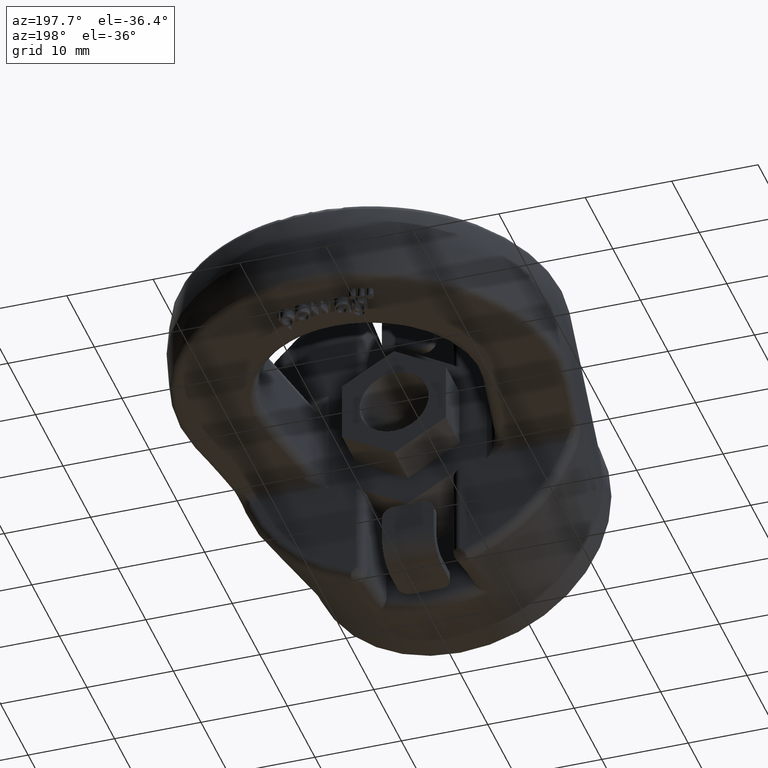
[diagram: clean part render]
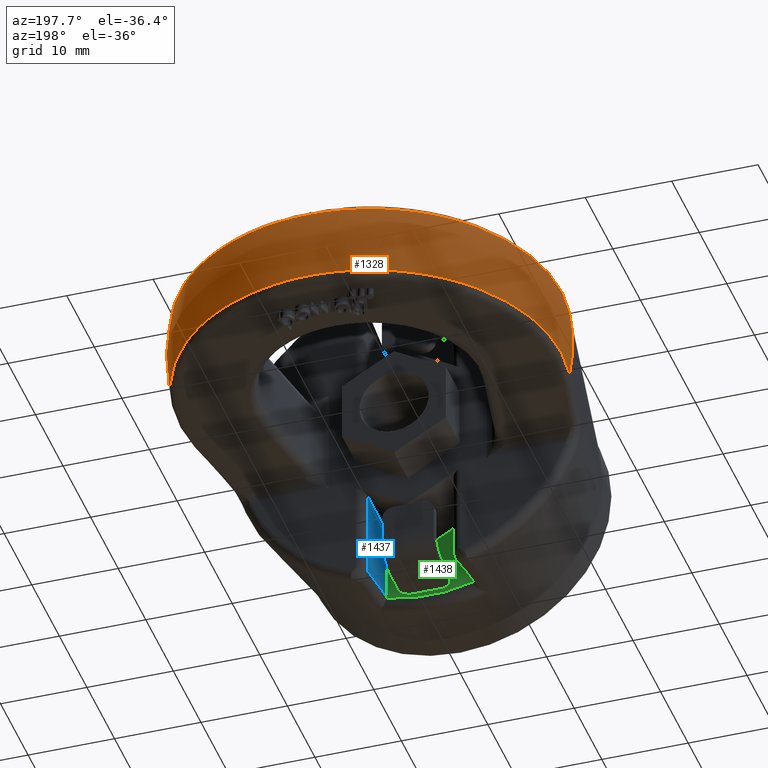
[diagram: same view with three faces highlighted in distinct colors, each labeled with its STEP entity id]
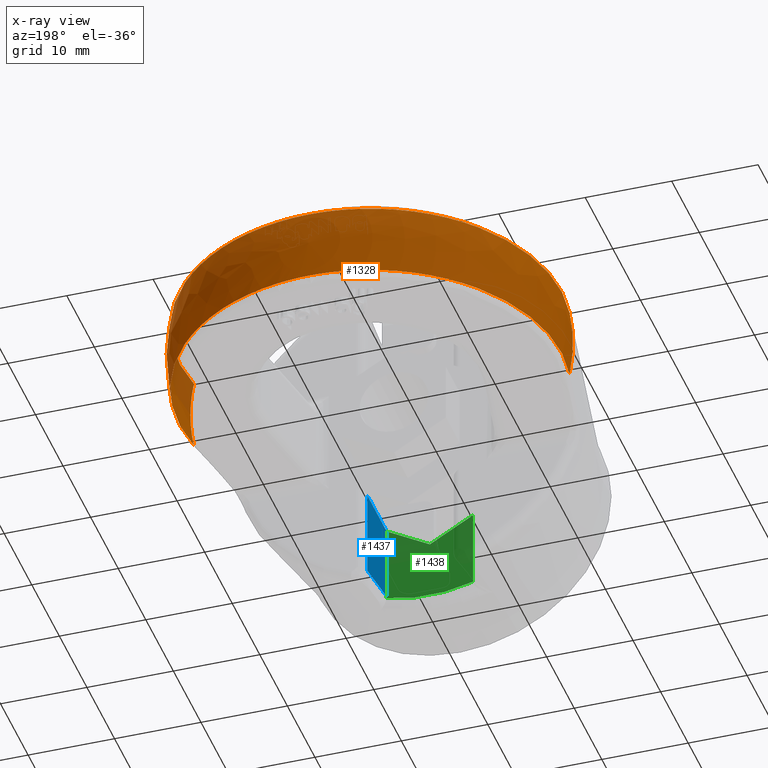
[diagram: x-ray of the same camera — body ghosted, the three highlighted faces saturated]
A machine part, auxiliary view with three faces highlighted in distinct colors.
The next image is the same camera in x-ray (body ghosted, the three faces saturated) — at least one of them is partly hidden behind the body in this view.
Their STEP definitions:

[orange] entity #1328 — the highlighted spherical surface has radius 22.5 mm.
#1103=SPHERICAL_SURFACE('',#5123,22.5);
#1108=FACE_OUTER_BOUND('',#1842,.T.);
#1328=ADVANCED_FACE('',(#1108),#1103,.T.);
#1682=CIRCLE('',#5111,22.1362709954225);
#1686=CIRCLE('',#5115,22.1362709954225);
#1691=CIRCLE('',#5121,22.1071711126161);
#1692=CIRCLE('',#5122,22.1071711126161);
#1842=EDGE_LOOP('',(#2789,#2790,#2791,#2792));
#2789=ORIENTED_EDGE('',*,*,#4322,.F.);
#2790=ORIENTED_EDGE('',*,*,#4343,.T.);
#2791=ORIENTED_EDGE('',*,*,#4332,.F.);
#2792=ORIENTED_EDGE('',*,*,#4344,.T.);
#3936=VERTEX_POINT('',#6576);
#3937=VERTEX_POINT('',#6577);
#3946=VERTEX_POINT('',#6649);
#3947=VERTEX_POINT('',#6651);
#4322=EDGE_CURVE('',#3936,#3937,#1682,.T.);
#4332=EDGE_CURVE('',#3946,#3947,#1686,.T.);
#4343=EDGE_CURVE('',#3936,#3947,#1691,.T.);
#4344=EDGE_CURVE('',#3946,#3937,#1692,.T.);
#5111=AXIS2_PLACEMENT_3D('',#6575,#5432,#5433);
#5115=AXIS2_PLACEMENT_3D('',#6650,#5440,#5441);
#5121=AXIS2_PLACEMENT_3D('',#6726,#5452,#5453);
#5122=AXIS2_PLACEMENT_3D('',#6727,#5454,#5455);
#5123=AXIS2_PLACEMENT_3D('',#6728,#5456,#5457);
#5432=DIRECTION('',(-2.31642728823096E-15,-1.,0.));
#5433=DIRECTION('',(1.,-2.35096978574511E-15,0.));
#5440=DIRECTION('',(-2.31642728823096E-15,-1.,0.));
#5441=DIRECTION('',(1.,-2.35096978574511E-15,0.));
#5452=DIRECTION('',(0.,-1.31989829693887E-16,-1.));
#5453=DIRECTION('',(0.,1.,-1.17703219498774E-16));
#5454=DIRECTION('',(-2.34291072916505E-15,-1.31989829693887E-16,1.));
#5455=DIRECTION('',(-2.78777225301435E-31,1.,1.17703219498774E-16));
#5456=DIRECTION('',(-2.2551949482736E-15,-1.,0.));
#5457=DIRECTION('',(1.,-2.46716227694479E-15,0.));
#6575=CARTESIAN_POINT('',(-6.14532657235411E-14,28.4706692345727,0.));
#6576=CARTESIAN_POINT('',(-21.7368697881106,28.4706692345727,4.18604651162793));
#6577=CARTESIAN_POINT('',(-21.7368697881104,28.4706692345726,-4.18604651162796));
#6649=CARTESIAN_POINT('',(21.7368697881106,28.4706692345727,-4.18604651162788));
#6650=CARTESIAN_POINT('',(-6.14532657235411E-14,28.4706692345727,0.));
#6651=CARTESIAN_POINT('',(21.7368697881105,28.4706692345726,4.18604651162791));
#6726=CARTESIAN_POINT('',(0.,32.5,4.18604651162791));
#6727=CARTESIAN_POINT('',(9.80753328487695E-15,32.5,-4.18604651162791));
#6728=CARTESIAN_POINT('',(0.,32.5,0.));

[blue] entity #1437 — the highlighted planar face has unit normal (-1, 0, -0).
#1204=FACE_OUTER_BOUND('',#1971,.T.);
#1437=ADVANCED_FACE('',(#1204),#1616,.T.);
#1616=PLANE('',#5239);
#1971=EDGE_LOOP('',(#3316,#3317,#3318,#3319));
#2261=LINE('',#8395,#2559);
#2262=LINE('',#8398,#2560);
#2263=LINE('',#8408,#2561);
#2559=VECTOR('',#5838,1.);
#2560=VECTOR('',#5839,1.);
#2561=VECTOR('',#5840,1.);
#3316=ORIENTED_EDGE('',*,*,#4607,.F.);
#3317=ORIENTED_EDGE('',*,*,#4608,.T.);
#3318=ORIENTED_EDGE('',*,*,#4609,.T.);
#3319=ORIENTED_EDGE('',*,*,#4610,.F.);
#4128=VERTEX_POINT('',#8396);
#4129=VERTEX_POINT('',#8397);
#4130=VERTEX_POINT('',#8399);
#4131=VERTEX_POINT('',#8407);
#4607=EDGE_CURVE('',#4128,#4129,#2261,.T.);
#4608=EDGE_CURVE('',#4128,#4130,#2262,.T.);
#4609=EDGE_CURVE('',#4130,#4131,#5000,.T.);
#4610=EDGE_CURVE('',#4129,#4131,#2263,.T.);
#5000=B_SPLINE_CURVE_WITH_KNOTS('',3,(#8400,#8401,#8402,#8403,#8404,#8405,
#8406),.UNSPECIFIED.,.F.,.F.,(4,3,4),(0.,0.444388566667332,1.),
 .UNSPECIFIED.);
#5239=AXIS2_PLACEMENT_3D('',#8409,#5841,#5842);
#5838=DIRECTION('',(0.,-1.,0.));
#5839=DIRECTION('',(2.34291072916505E-15,0.,-1.));
#5840=DIRECTION('',(2.34291072916505E-15,0.,-1.));
#5841=DIRECTION('',(-1.,0.,-2.34291072916505E-15));
#5842=DIRECTION('',(-2.34274405430668E-15,0.,1.));
#8395=CARTESIAN_POINT('',(5.00000000000002,19.,-7.50555349946511));
#8396=CARTESIAN_POINT('',(5.00000000000002,18.,-7.50555349946511));
#8397=CARTESIAN_POINT('',(5.00000000000002,11.,-7.50555349946511));
#8398=CARTESIAN_POINT('',(5.00000000000006,18.,-24.75));
#8399=CARTESIAN_POINT('',(5.00000000000004,18.,-17.7808584947153));
#8400=CARTESIAN_POINT('',(5.00000000000004,18.,-17.7808584947153));
#8401=CARTESIAN_POINT('',(5.00000000000004,16.9629198409666,-17.5804677274737));
#8402=CARTESIAN_POINT('',(5.00000000000004,15.9259105570917,-17.3797097332841));
#8403=CARTESIAN_POINT('',(5.00000000000004,14.8889802970827,-17.1785447469317));
#8404=CARTESIAN_POINT('',(5.00000000000004,13.5925241273207,-16.9270316049637));
#8405=CARTESIAN_POINT('',(5.00000000000004,12.2961910617043,-16.6748828219853));
#8406=CARTESIAN_POINT('',(5.00000000000004,11.,-16.4220069784285));
#8407=CARTESIAN_POINT('',(5.00000000000004,11.,-16.4220069784285));
#8408=CARTESIAN_POINT('',(5.00000000000006,11.,-24.75));
#8409=CARTESIAN_POINT('',(5.00000000000006,19.,-24.75));

[green] entity #1438 — the highlighted planar face has unit normal (0, 1, 0).
#1205=FACE_OUTER_BOUND('',#1972,.T.);
#1438=ADVANCED_FACE('',(#1205),#1617,.T.);
#1617=PLANE('',#5241);
#1726=CIRCLE('',#5240,17.3582509719999);
#1972=EDGE_LOOP('',(#3320,#3321,#3322,#3323,#3324,#3325,#3326));
#2263=LINE('',#8408,#2561);
#2264=LINE('',#8422,#2562);
#2265=LINE('',#8424,#2563);
#2266=LINE('',#8426,#2564);
#2561=VECTOR('',#5840,1.);
#2562=VECTOR('',#5845,1.);
#2563=VECTOR('',#5846,1.);
#2564=VECTOR('',#5847,1.);
#3320=ORIENTED_EDGE('',*,*,#4610,.T.);
#3321=ORIENTED_EDGE('',*,*,#4611,.T.);
#3322=ORIENTED_EDGE('',*,*,#4612,.T.);
#3323=ORIENTED_EDGE('',*,*,#4613,.T.);
#3324=ORIENTED_EDGE('',*,*,#4614,.F.);
#3325=ORIENTED_EDGE('',*,*,#4615,.F.);
#3326=ORIENTED_EDGE('',*,*,#4616,.F.);
#4129=VERTEX_POINT('',#8397);
#4131=VERTEX_POINT('',#8407);
#4132=VERTEX_POINT('',#8414);
#4133=VERTEX_POINT('',#8416);
#4134=VERTEX_POINT('',#8421);
#4135=VERTEX_POINT('',#8423);
#4136=VERTEX_POINT('',#8425);
#4610=EDGE_CURVE('',#4129,#4131,#2263,.T.);
#4611=EDGE_CURVE('',#4131,#4132,#5001,.T.);
#4612=EDGE_CURVE('',#4132,#4133,#1726,.T.);
#4613=EDGE_CURVE('',#4133,#4134,#5002,.T.);
#4614=EDGE_CURVE('',#4135,#4134,#2264,.T.);
#4615=EDGE_CURVE('',#4136,#4135,#2265,.T.);
#4616=EDGE_CURVE('',#4129,#4136,#2266,.T.);
#5001=B_SPLINE_CURVE_WITH_KNOTS('',3,(#8410,#8411,#8412,#8413),
 .UNSPECIFIED.,.F.,.F.,(4,4),(0.,1.),.UNSPECIFIED.);
#5002=B_SPLINE_CURVE_WITH_KNOTS('',3,(#8417,#8418,#8419,#8420),
 .UNSPECIFIED.,.F.,.F.,(4,4),(0.,1.),.UNSPECIFIED.);
#5240=AXIS2_PLACEMENT_3D('',#8415,#5843,#5844);
#5241=AXIS2_PLACEMENT_3D('',#8427,#5848,#5849);
#5840=DIRECTION('',(2.34291072916505E-15,0.,-1.));
#5843=DIRECTION('',(3.46944695195361E-16,1.,8.1286044880011E-31));
#5844=DIRECTION('',(1.,-2.99809608486773E-16,2.34291072916505E-15));
#5845=DIRECTION('',(2.34291072916505E-15,0.,-1.));
#5846=DIRECTION('',(-0.866025403784441,3.00462919747432E-16,0.499999999999996));
#5847=DIRECTION('',(-0.866025403784439,3.00462919747432E-16,-0.5));
#5848=DIRECTION('',(3.46944695195361E-16,1.,8.1286044880011E-31));
#5849=DIRECTION('',(1.,-3.46944695195361E-16,2.34187669256869E-15));
#8397=CARTESIAN_POINT('',(5.00000000000002,11.,-7.50555349946511));
#8407=CARTESIAN_POINT('',(5.00000000000004,11.,-16.4220069784285));
#8408=CARTESIAN_POINT('',(5.00000000000006,11.,-24.75));
#8410=CARTESIAN_POINT('',(5.00000000000004,11.,-16.4220069784285));
#8411=CARTESIAN_POINT('',(5.00000000000004,11.,-16.4876123357343));
#8412=CARTESIAN_POINT('',(5.00468728359077,11.,-16.5533832063775));
#8413=CARTESIAN_POINT('',(5.01399632846134,11.,-16.6183247538707));
#8414=CARTESIAN_POINT('',(5.01399632846134,11.,-16.6183247538707));
#8415=CARTESIAN_POINT('',(1.64109162526477E-13,11.,3.84493117637574E-28));
#8416=CARTESIAN_POINT('',(-5.01399632846126,11.,-16.6183247538706));
#8417=CARTESIAN_POINT('',(-5.01399632846126,11.,-16.6183247538706));
#8418=CARTESIAN_POINT('',(-5.00468728359069,11.,-16.5533832063774));
#8419=CARTESIAN_POINT('',(-4.99999999999996,11.,-16.4876123357342));
#8420=CARTESIAN_POINT('',(-4.99999999999996,11.,-16.4220069784285));
#8421=CARTESIAN_POINT('',(-4.99999999999996,11.,-16.4220069784285));
#8422=CARTESIAN_POINT('',(-4.99999999999994,11.,-24.75));
#8423=CARTESIAN_POINT('',(-4.99999999999998,11.,-7.50555349946514));
#8424=CARTESIAN_POINT('',(9.96706437183248,11.,-16.146792143521));
#8425=CARTESIAN_POINT('',(2.39145616540784E-14,11.,-10.3923048454132));
#8426=CARTESIAN_POINT('',(-2.4670643718324,11.,-11.8166651245988));
#8427=CARTESIAN_POINT('',(5.00000000000006,11.,-24.75));